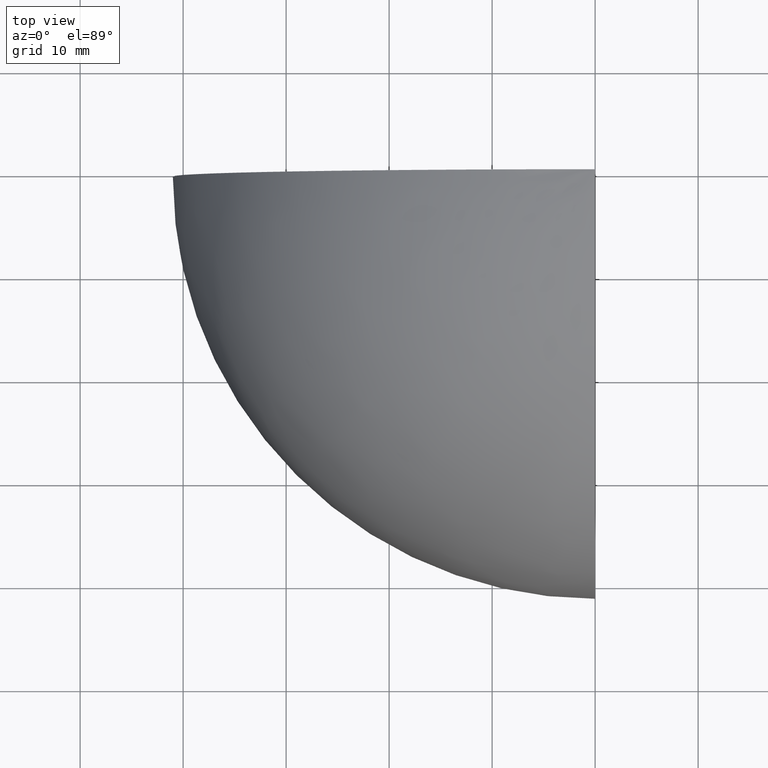
[diagram: clean part render]
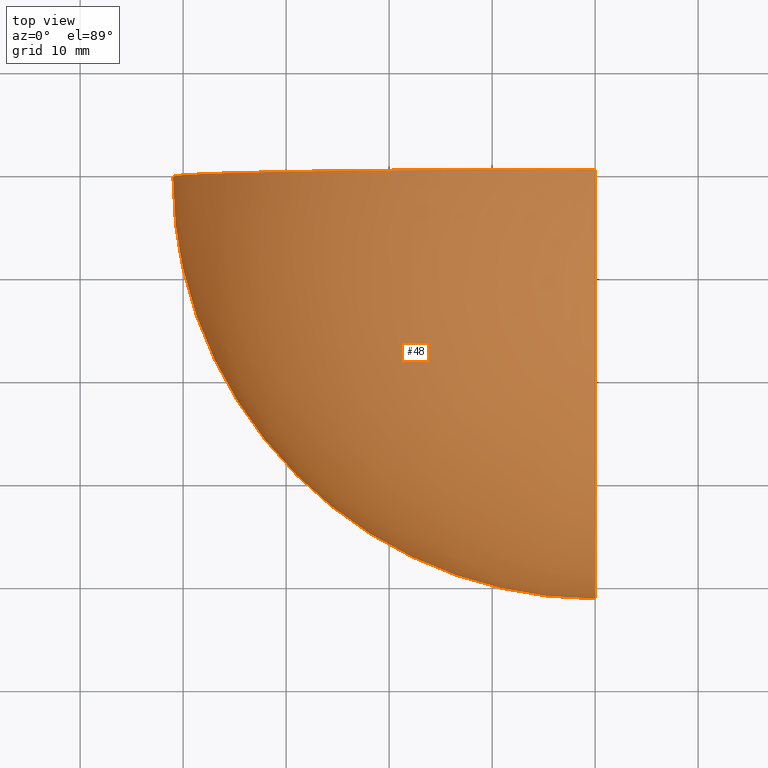
[diagram: same view with one face highlighted and labeled with its STEP entity id]
A machine part, top view. The second image highlights one B-rep face of the part: STEP entity #48.
In plain terms, the highlighted face is a freeform B-spline surface patch.
Its self-contained STEP definition (entity closure, byte-faithful):
#2=CARTESIAN_POINT('',(-41.0,0.0,0.0));
#3=CARTESIAN_POINT('',(-41.0,-40.999999999999993,0.0));
#4=CARTESIAN_POINT('',(-9.103829E-015,-41.0,3.034610E-015));
#5=CARTESIAN_POINT('',(-41.0,0.0,40.999999999999993));
#6=CARTESIAN_POINT('',(-41.0,-40.999999999999993,40.999999999999993));
#7=CARTESIAN_POINT('',(-1.213844E-014,-41.0,40.999999999999993));
#8=CARTESIAN_POINT('',(-9.103829E-015,0.0,41.0));
#9=CARTESIAN_POINT('',(-9.103829E-015,0.0,41.0));
#10=CARTESIAN_POINT('',(-9.103829E-015,0.0,41.0));
#18=(BOUNDED_SURFACE()B_SPLINE_SURFACE(2,2,((#2,#5,#8),(#3,#6,#9),(#4,#7,#10)),.UNSPECIFIED.,.F.,.F.,.U.)GEOMETRIC_REPRESENTATION_ITEM()QUASI_UNIFORM_SURFACE()RATIONAL_B_SPLINE_SURFACE(((1.0,0.707106781186548,1.0),(0.707106781186548,0.500000000000000,0.707106781186548),(1.0,0.707106781186548,1.0)))REPRESENTATION_ITEM('')SURFACE());
#19=CARTESIAN_POINT('',(-41.0,0.0,0.0));
#20=VERTEX_POINT('',#19);
#21=CARTESIAN_POINT('',(-3.552714E-015,-41.0,3.034610E-015));
#22=VERTEX_POINT('',#21);
#23=CARTESIAN_POINT('',(0.0,0.0,3.034610E-015));
#24=DIRECTION('',(-7.401487E-017,0.0,1.0));
#25=DIRECTION('',(-1.0,0.0,-7.401487E-017));
#26=AXIS2_PLACEMENT_3D('',#23,#24,#25);
#27=CIRCLE('',#26,41.0);
#28=EDGE_CURVE('',#20,#22,#27,.T.);
#29=ORIENTED_EDGE('',*,*,#28,.T.);
#30=CARTESIAN_POINT('',(0.0,0.0,41.0));
#31=VERTEX_POINT('',#30);
#32=CARTESIAN_POINT('',(3.552714E-015,0.0,0.0));
#33=DIRECTION('',(-1.0,6.123234E-017,-7.401487E-017));
#34=DIRECTION('',(-6.123234E-017,-1.0,7.401487E-017));
#35=AXIS2_PLACEMENT_3D('',#32,#33,#34);
#36=CIRCLE('',#35,41.0);
#37=EDGE_CURVE('',#22,#31,#36,.T.);
#38=ORIENTED_EDGE('',*,*,#37,.T.);
#39=CARTESIAN_POINT('',(0.0,0.0,0.0));
#40=DIRECTION('',(0.0,1.0,0.0));
#41=DIRECTION('',(-1.0,0.0,0.0));
#42=AXIS2_PLACEMENT_3D('',#39,#40,#41);
#43=CIRCLE('',#42,41.0);
#44=EDGE_CURVE('',#20,#31,#43,.T.);
#45=ORIENTED_EDGE('',*,*,#44,.F.);
#46=EDGE_LOOP('',(#29,#38,#45));
#47=FACE_OUTER_BOUND('',#46,.T.);
#48=ADVANCED_FACE('',(#47),#18,.T.);